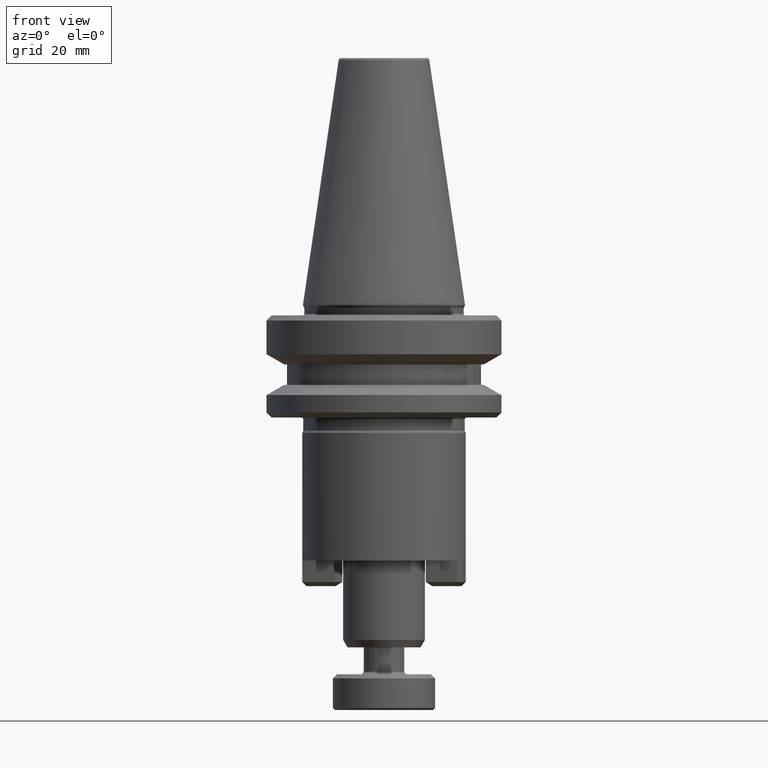
[diagram: clean part render]
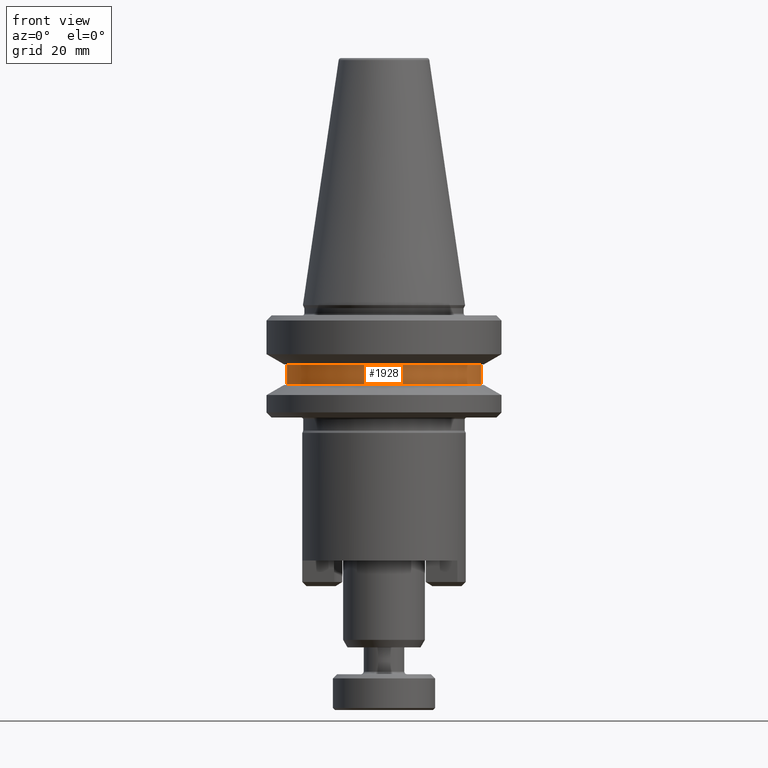
[diagram: same view with one face highlighted and labeled with its STEP entity id]
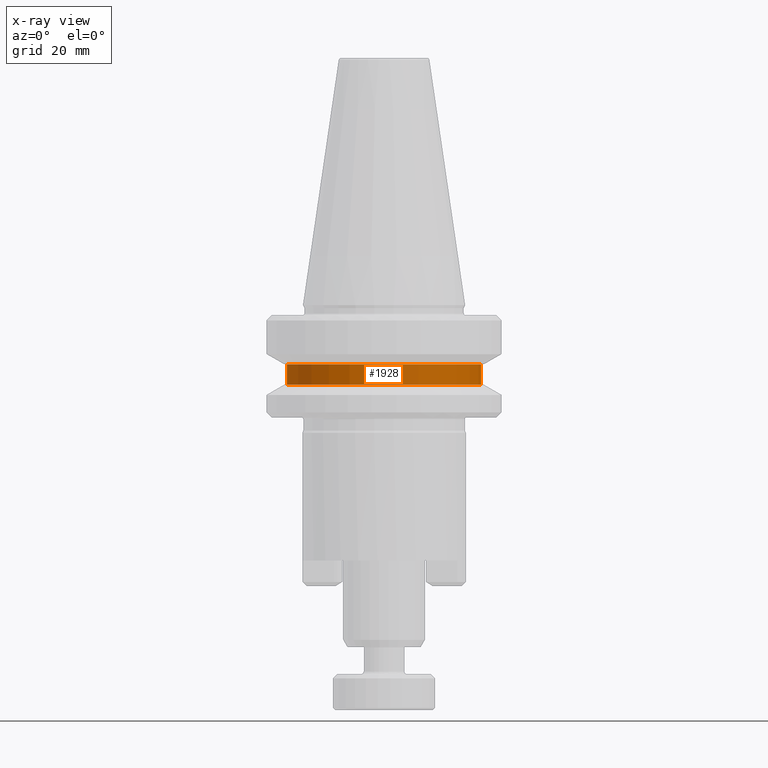
[diagram: x-ray of the same camera — body ghosted, the highlighted face saturated]
A machine part, front view. The second image highlights one B-rep face of the part: STEP entity #1928.
The next image is the same camera in x-ray: the body ghosted, the highlighted face saturated — about 0% of this face is hidden behind the body in this view.
In plain terms, the highlighted cylindrical surface (partial cylindrical patch) has radius 19 mm, axis along (-0, -0, 1).
Its self-contained STEP definition (entity closure, byte-faithful):
#7 = LINE ( 'NONE', #1033, #764 ) ;
#10 = CARTESIAN_POINT ( 'NONE',  ( -5.371641434294360800, 1.568325594917041600, 75.33775355038541500 ) ) ;
#49 = EDGE_CURVE ( 'NONE', #937, #1681, #1223, .T. ) ;
#136 = DIRECTION ( 'NONE',  ( -0.0000000000000000000, -0.0000000000000000000, 1.000000000000000000 ) ) ;
#182 = CARTESIAN_POINT ( 'NONE',  ( -5.371641434294360800, 1.568325594917041600, -0.5309552893285884900 ) ) ;
#217 = CARTESIAN_POINT ( 'NONE',  ( 13.62835856570587700, 1.568325594917041600, 75.33775355038541500 ) ) ;
#308 = DIRECTION ( 'NONE',  ( 1.000000000000000000, 0.0000000000000000000, 0.0000000000000000000 ) ) ;
#338 = EDGE_CURVE ( 'NONE', #1605, #937, #7, .T. ) ;
#429 = ORIENTED_EDGE ( 'NONE', *, *, #1806, .T. ) ;
#504 = FACE_OUTER_BOUND ( 'NONE', #1324, .T. ) ;
#510 = VECTOR ( 'NONE', #1510, 1000.000000000000000 ) ;
#557 = CARTESIAN_POINT ( 'NONE',  ( 13.62835856570587700, 1.568325594917041600, -4.530955289329035900 ) ) ;
#764 = VECTOR ( 'NONE', #2065, 1000.000000000000000 ) ;
#824 = CARTESIAN_POINT ( 'NONE',  ( -24.37164143429459900, 1.568325594917044000, -0.5309552893285884900 ) ) ;
#937 = VERTEX_POINT ( 'NONE', #824 ) ;
#987 = VERTEX_POINT ( 'NONE', #557 ) ;
#990 = ORIENTED_EDGE ( 'NONE', *, *, #1300, .T. ) ;
#995 = AXIS2_PLACEMENT_3D ( 'NONE', #182, #1763, #308 ) ;
#1033 = CARTESIAN_POINT ( 'NONE',  ( -24.37164143429459900, 1.568325594917044000, 75.33775355038541500 ) ) ;
#1058 = CARTESIAN_POINT ( 'NONE',  ( -24.37164143429459900, 1.568325594917044000, -4.530955289329035900 ) ) ;
#1112 = CARTESIAN_POINT ( 'NONE',  ( -5.371641434294360800, 1.568325594917041600, -4.530955289329035900 ) ) ;
#1223 = CIRCLE ( 'NONE', #995, 19.00000000000023800 ) ;
#1272 = DIRECTION ( 'NONE',  ( 1.000000000000000000, 0.0000000000000000000, 0.0000000000000000000 ) ) ;
#1300 = EDGE_CURVE ( 'NONE', #987, #1681, #1420, .T. ) ;
#1312 = DIRECTION ( 'NONE',  ( -0.0000000000000000000, -0.0000000000000000000, 1.000000000000000000 ) ) ;
#1324 = EDGE_LOOP ( 'NONE', ( #1377, #429, #990, #1725 ) ) ;
#1377 = ORIENTED_EDGE ( 'NONE', *, *, #338, .F. ) ;
#1420 = LINE ( 'NONE', #217, #510 ) ;
#1487 = AXIS2_PLACEMENT_3D ( 'NONE', #1112, #136, #1272 ) ;
#1510 = DIRECTION ( 'NONE',  ( -0.0000000000000000000, -0.0000000000000000000, 1.000000000000000000 ) ) ;
#1605 = VERTEX_POINT ( 'NONE', #1058 ) ;
#1681 = VERTEX_POINT ( 'NONE', #2055 ) ;
#1725 = ORIENTED_EDGE ( 'NONE', *, *, #49, .F. ) ;
#1731 = CYLINDRICAL_SURFACE ( 'NONE', #1961, 19.00000000000023800 ) ;
#1763 = DIRECTION ( 'NONE',  ( -0.0000000000000000000, -0.0000000000000000000, 1.000000000000000000 ) ) ;
#1788 = DIRECTION ( 'NONE',  ( 1.000000000000000000, 0.0000000000000000000, 0.0000000000000000000 ) ) ;
#1806 = EDGE_CURVE ( 'NONE', #1605, #987, #1978, .T. ) ;
#1928 = ADVANCED_FACE ( 'NONE', ( #504 ), #1731, .T. ) ;
#1961 = AXIS2_PLACEMENT_3D ( 'NONE', #10, #1312, #1788 ) ;
#1978 = CIRCLE ( 'NONE', #1487, 19.00000000000023800 ) ;
#2055 = CARTESIAN_POINT ( 'NONE',  ( 13.62835856570587700, 1.568325594917041600, -0.5309552893285884900 ) ) ;
#2065 = DIRECTION ( 'NONE',  ( -0.0000000000000000000, -0.0000000000000000000, 1.000000000000000000 ) ) ;